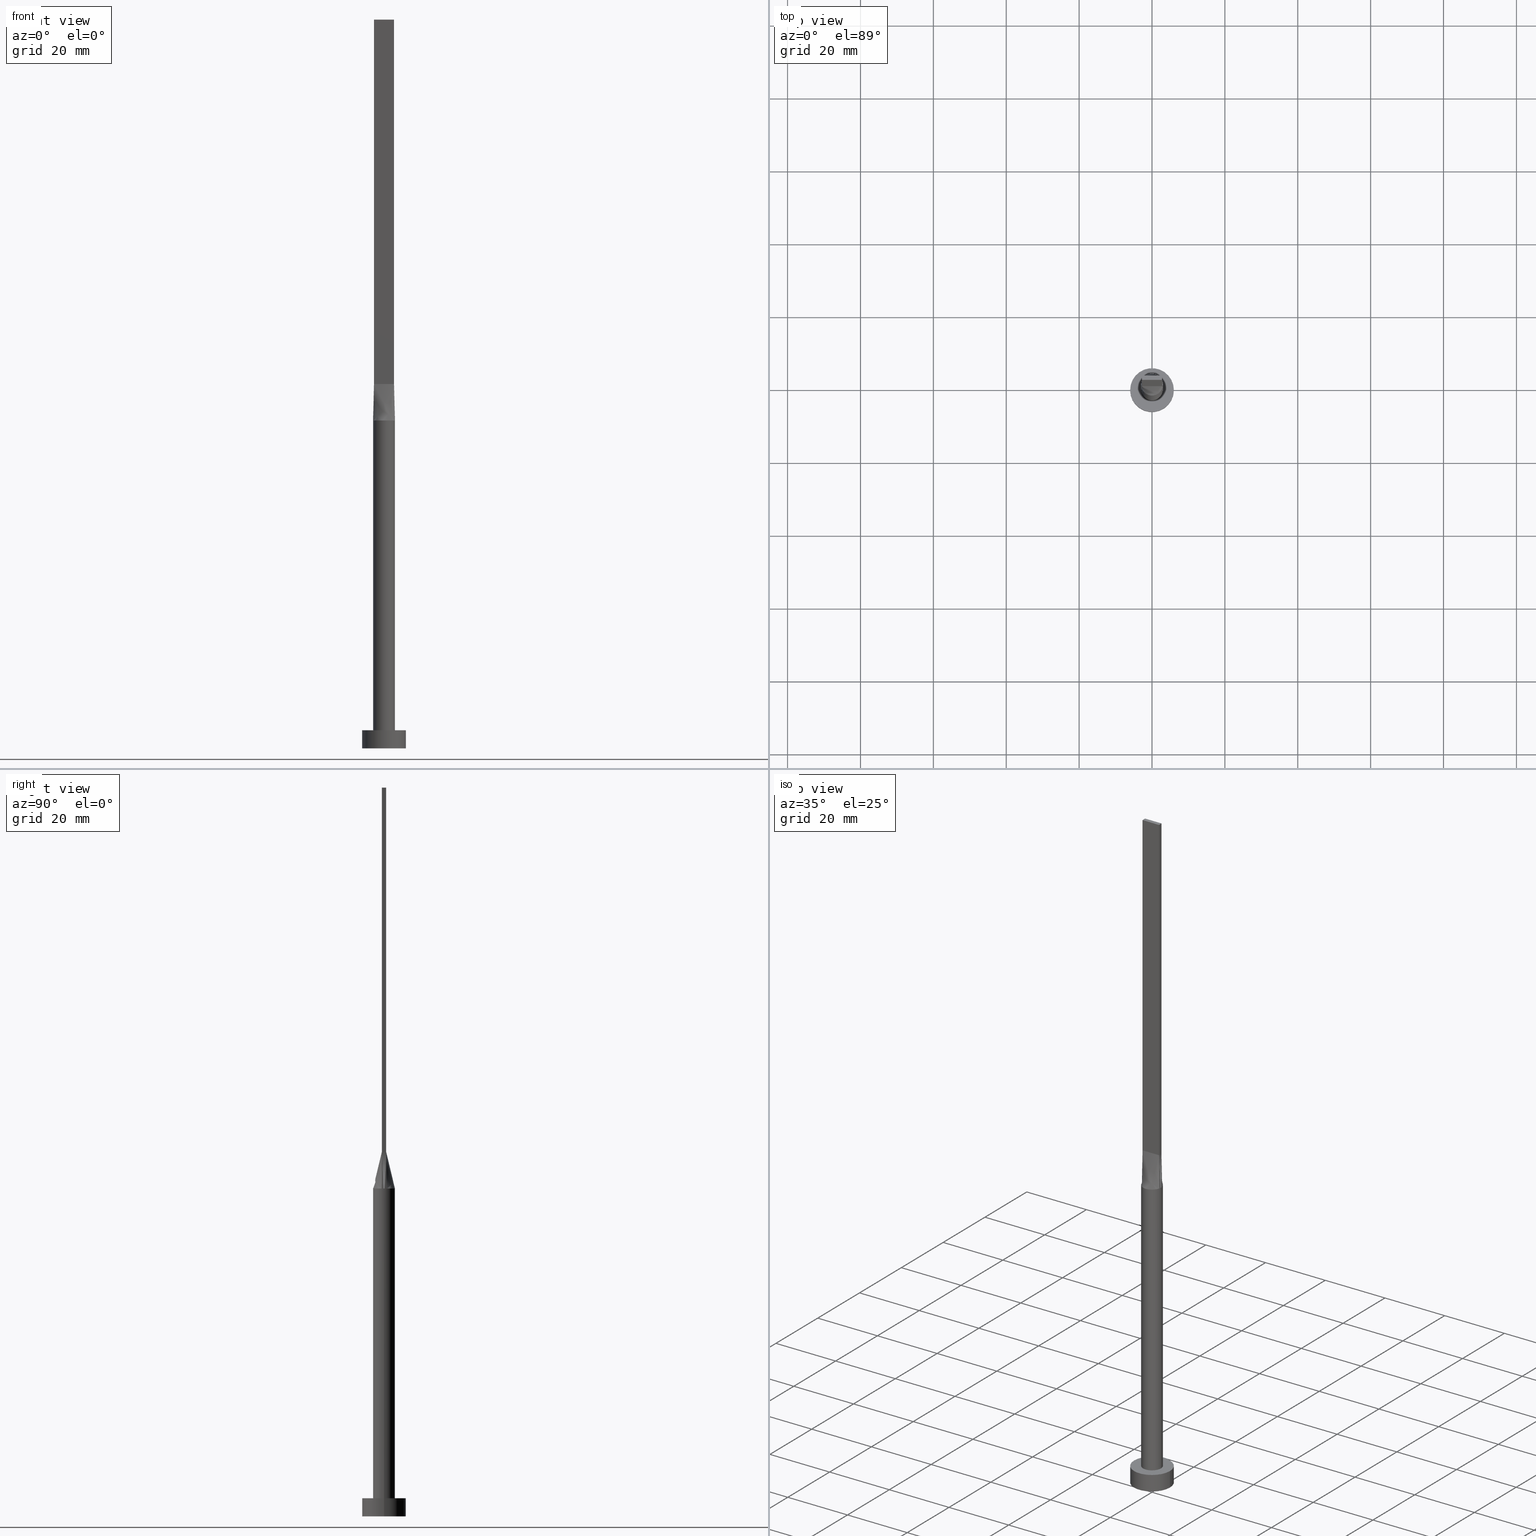
[diagram: canonical four-view strip — front | top / right | iso, engineering-drawing reading convention]
A machine part, canonical four-view strip (front | top / right | iso — engineering-drawing reading convention). The complete STEP part file that produces these views, byte-faithful:
ISO-10303-21;
HEADER;
FILE_DESCRIPTION (( 'STEP AP203' ),
    '1' );
FILE_NAME ('50dd.STEP',
    '2023-02-13T11:41:04',
    ( '' ),
    ( '' ),
    'SwSTEP 2.0',
    'SolidWorks 2019',
    '' );
FILE_SCHEMA (( 'CONFIG_CONTROL_DESIGN' ));
ENDSEC;

DATA;
#1 = CARTESIAN_POINT ( 'NONE',  ( 2.878980386154874616, 0.8781411751610636029, 90.00000000000002842 ) ) ;
#2 = CC_DESIGN_PERSON_AND_ORGANIZATION_ASSIGNMENT ( #142, #519, ( #194 ) ) ;
#3 = VERTEX_POINT ( 'NONE', #56 ) ;
#4 = CARTESIAN_POINT ( 'NONE',  ( 2.750000000000000000, 0.6000000000000001998, 100.0000000000000000 ) ) ;
#5 = ORIENTED_EDGE ( 'NONE', *, *, #288, .T. ) ;
#6 = CARTESIAN_POINT ( 'NONE',  ( 2.750000000000000000, -0.5999999999999997558, 200.0000000000000000 ) ) ;
#7 = ORIENTED_EDGE ( 'NONE', *, *, #487, .F. ) ;
#8 = LOCAL_TIME ( 12, 41, 4.000000000000000000, #94 ) ;
#9 = CARTESIAN_POINT ( 'NONE',  ( 1.604166666666666963, 0.6000000000000000888, 100.0000000000000000 ) ) ;
#10 = CARTESIAN_POINT ( 'NONE',  ( 1.829136458871247761, 2.402980488111650992, 89.99999999999997158 ) ) ;
#11 = VERTEX_POINT ( 'NONE', #250 ) ;
#12 = ORIENTED_EDGE ( 'NONE', *, *, #14, .T. ) ;
#13 = CARTESIAN_POINT ( 'NONE',  ( 2.750000000000000000, -0.1999999999999961253, 100.0000000000000000 ) ) ;
#14 = EDGE_CURVE ( 'NONE', #458, #248, #575, .T. ) ;
#15 = EDGE_LOOP ( 'NONE', ( #447, #158, #154, #321 ) ) ;
#16 = ORIENTED_EDGE ( 'NONE', *, *, #240, .F. ) ;
#17 = CARTESIAN_POINT ( 'NONE',  ( 0.2291666666666671015, 0.6000000000000001998, 100.0000000000000142 ) ) ;
#18 = PLANE ( 'NONE',  #87 ) ;
#19 = DIRECTION ( 'NONE',  ( -1.000000000000000000, 0.000000000000000000, 0.000000000000000000 ) ) ;
#20 = VECTOR ( 'NONE', #99, 1000.000000000000000 ) ;
#21 = CARTESIAN_POINT ( 'NONE',  ( 2.520833333333333037, 0.6000000000000000888, 100.0000000000000000 ) ) ;
#22 = CARTESIAN_POINT ( 'NONE',  ( 2.792624347712116872, -1.135030881087315757, 90.00000000000002842 ) ) ;
#23 = CARTESIAN_POINT ( 'NONE',  ( -0.4026715616377299356, 2.999999999999999556, 89.99999999999998579 ) ) ;
#24 = CC_DESIGN_DATE_AND_TIME_ASSIGNMENT ( #567, #143, ( #298 ) ) ;
#25 = CARTESIAN_POINT ( 'NONE',  ( 2.999207587164657074, -0.2156168166748835269, 90.00000000000001421 ) ) ;
#26 = CARTESIAN_POINT ( 'NONE',  ( 1.604166666666666741, -0.5999999999999996447, 100.0000000000000000 ) ) ;
#27 = ORIENTED_EDGE ( 'NONE', *, *, #333, .F. ) ;
#28 = CARTESIAN_POINT ( 'NONE',  ( -2.750000000000000000, -0.5999999999999995337, 100.0000000000000000 ) ) ;
#29 = FACE_OUTER_BOUND ( 'NONE', #100, .T. ) ;
#30 = CARTESIAN_POINT ( 'NONE',  ( -0.8041209001220698260, -2.916015559847872307, 90.00000000000002842 ) ) ;
#31 = CARTESIAN_POINT ( 'NONE',  ( 0.000000000000000000, 0.000000000000000000, 90.00000000000001421 ) ) ;
#32 = LOCAL_TIME ( 12, 41, 4.000000000000000000, #525 ) ;
#33 = CARTESIAN_POINT ( 'NONE',  ( -2.750000000000000000, -0.5999999999999994227, 100.0000000000000000 ) ) ;
#34 = ADVANCED_FACE ( 'NONE', ( #351 ), #563, .F. ) ;
#35 = DIRECTION ( 'NONE',  ( 0.01810162078030959007, -0.003949444533885576245, 0.9998283518749604415 ) ) ;
#36 = CARTESIAN_POINT ( 'NONE',  ( -2.750000000000000000, 0.6000000000000001998, 100.0000000000000000 ) ) ;
#37 = APPROVAL_DATE_TIME ( #355, #192 ) ;
#38 = PERSON ( 'NEUR�EN�', 'NEUR�EN�', 'NEUR�EN�', ('NEUR�EN�'), ('NEUR�EN�'), ('NEUR�EN�') ) ;
#39 = EDGE_CURVE ( 'NONE', #178, #111, #565, .T. ) ;
#40 = PERSON_AND_ORGANIZATION_ROLE ( 'design_supplier' ) ;
#41 = PLANE ( 'NONE',  #479 ) ;
#42 = PERSON_AND_ORGANIZATION_ROLE ( 'design_owner' ) ;
#43 = CARTESIAN_POINT ( 'NONE',  ( 2.750000000000000000, -0.5999999999999997558, 200.0000000000000000 ) ) ;
#44 = CARTESIAN_POINT ( 'NONE',  ( 2.792624347712116872, 1.135030881087315979, 90.00000000000001421 ) ) ;
#45 = CARTESIAN_POINT ( 'NONE',  ( 0.000000000000000000, 0.000000000000000000, 5.000000000000000000 ) ) ;
#46 = CARTESIAN_POINT ( 'NONE',  ( 0.000000000000000000, 0.000000000000000000, 5.000000000000000000 ) ) ;
#47 = APPROVAL ( #155, 'NEUR�EN�' ) ;
#48 = DIRECTION ( 'NONE',  ( 1.000000000000000000, 0.000000000000000000, 0.000000000000000000 ) ) ;
#49 = VERTEX_POINT ( 'NONE', #195 ) ;
#50 = ORIENTED_EDGE ( 'NONE', *, *, #98, .F. ) ;
#51 = VERTEX_POINT ( 'NONE', #200 ) ;
#52 = VERTEX_POINT ( 'NONE', #284 ) ;
#53 = CARTESIAN_POINT ( 'NONE',  ( -1.517787371616671654, 2.616501225271827380, 90.00000000000004263 ) ) ;
#54 = ORIENTED_EDGE ( 'NONE', *, *, #153, .F. ) ;
#55 = CARTESIAN_POINT ( 'NONE',  ( 1.829136458871247761, 2.402980488111650992, 89.99999999999997158 ) ) ;
#56 = CARTESIAN_POINT ( 'NONE',  ( 6.000000000000000888, 7.347880794884120722E-16, 0.000000000000000000 ) ) ;
#57 = VERTEX_POINT ( 'NONE', #497 ) ;
#58 = CARTESIAN_POINT ( 'NONE',  ( 2.750000000000000000, -0.3999999999999973022, 100.0000000000000000 ) ) ;
#59 = DIRECTION ( 'NONE',  ( -0.000000000000000000, -0.000000000000000000, -1.000000000000000000 ) ) ;
#60 = CARTESIAN_POINT ( 'NONE',  ( 2.931047284229977290, -0.6395012256501766412, 90.00000000000001421 ) ) ;
#61 = CARTESIAN_POINT ( 'NONE',  ( 1.829136458871248205, -2.402980488111650992, 90.00000000000002842 ) ) ;
#62 = DIRECTION ( 'NONE',  ( -1.000000000000000000, 0.000000000000000000, 0.000000000000000000 ) ) ;
#63 = CC_DESIGN_PERSON_AND_ORGANIZATION_ASSIGNMENT ( #138, #577, ( #298 ) ) ;
#64 = ORIENTED_EDGE ( 'NONE', *, *, #349, .T. ) ;
#65 = CARTESIAN_POINT ( 'NONE',  ( 0.000000000000000000, 0.000000000000000000, 5.000000000000000000 ) ) ;
#66 = EDGE_LOOP ( 'NONE', ( #290, #12 ) ) ;
#67 = CARTESIAN_POINT ( 'NONE',  ( 2.792624347712116872, 1.135030881087315979, 90.00000000000001421 ) ) ;
#68 = PRODUCT_DEFINITION_FORMATION_WITH_SPECIFIED_SOURCE ( 'LIBOVOLN�', '', #124, .NOT_KNOWN. ) ;
#69 = CARTESIAN_POINT ( 'NONE',  ( 0.8041209001220684938, -2.916015559847872751, 90.00000000000002842 ) ) ;
#70 = EDGE_LOOP ( 'NONE', ( #50, #168, #534, #308, #510, #303 ) ) ;
#71 = DIRECTION ( 'NONE',  ( 0.000000000000000000, 0.000000000000000000, 1.000000000000000000 ) ) ;
#72 = CARTESIAN_POINT ( 'NONE',  ( 0.000000000000000000, 0.000000000000000000, 5.000000000000000000 ) ) ;
#73 = ORIENTED_EDGE ( 'NONE', *, *, #503, .F. ) ;
#74 = DIRECTION ( 'NONE',  ( -0.01810162078030963170, 0.003949444533885597929, 0.9998283518749604415 ) ) ;
#75 = ORIENTED_EDGE ( 'NONE', *, *, #39, .T. ) ;
#76 = EDGE_CURVE ( 'NONE', #339, #11, #406, .T. ) ;
#77 = PLANE ( 'NONE',  #329 ) ;
#78 = CARTESIAN_POINT ( 'NONE',  ( 2.750000000000000000, -0.5999999999999997558, 100.0000000000000000 ) ) ;
#79 = DIRECTION ( 'NONE',  ( 1.000000000000000000, 0.000000000000000000, 0.000000000000000000 ) ) ;
#80 = LINE ( 'NONE', #33, #411 ) ;
#81 = CIRCLE ( 'NONE', #160, 3.000000000000000444 ) ;
#82 = DATE_AND_TIME ( #279, #401 ) ;
#83 = CARTESIAN_POINT ( 'NONE',  ( -2.878980386154874616, 0.8781411751610629368, 90.00000000000005684 ) ) ;
#84 = B_SPLINE_CURVE_WITH_KNOTS ( 'NONE', 3,
 ( #293, #1, #44, #415, #486, #10, #318, #235, #408, #23, #423, #204, #421, #259, #170, #331, #376, #543 ),
 .UNSPECIFIED., .F., .F.,
 ( 4, 2, 2, 2, 2, 2, 2, 2, 4 ),
 ( 0.000000000000000000, 0.1250000000000000000, 0.2500000000000000000, 0.3750000000000000000, 0.5000000000000000000, 0.6250000000000000000, 0.7500000000000000000, 0.8750000000000000000, 1.000000000000000000 ),
 .UNSPECIFIED. ) ;
#85 = PLANE ( 'NONE',  #476 ) ;
#86 = CARTESIAN_POINT ( 'NONE',  ( -2.291666666666665630, -0.5999999999999994227, 100.0000000000000000 ) ) ;
#87 = AXIS2_PLACEMENT_3D ( 'NONE', #206, #62, #428 ) ;
#88 = APPROVAL_DATE_TIME ( #483, #538 ) ;
#89 = CARTESIAN_POINT ( 'NONE',  ( -2.931047284229977734, -0.6395012256501755310, 90.00000000000001421 ) ) ;
#90 = CIRCLE ( 'NONE', #365, 3.000000000000000444 ) ;
#91 = DIRECTION ( 'NONE',  ( 1.000000000000000000, 0.000000000000000000, 0.000000000000000000 ) ) ;
#92 = CARTESIAN_POINT ( 'NONE',  ( 0.000000000000000000, 0.000000000000000000, 0.000000000000000000 ) ) ;
#93 = LINE ( 'NONE', #491, #156 ) ;
#94 = COORDINATED_UNIVERSAL_TIME_OFFSET ( 1, 0, .AHEAD. ) ;
#95 = B_SPLINE_SURFACE_WITH_KNOTS ( 'NONE', 3, 1, ( 
 ( #60, #113 ),
 ( #338, #58 ),
 ( #25, #13 ),
 ( #422, #504 ),
 ( #212, #431 ),
 ( #512, #169 ) ),
 .UNSPECIFIED., .F., .F., .F.,
 ( 4, 2, 4 ),
 ( 2, 2 ),
 ( 0.000000000000000000, 0.5000000000000000000, 1.000000000000000000 ),
 ( 0.000000000000000000, 1.000000000000000000 ),
 .UNSPECIFIED. ) ;
#96 = DIRECTION ( 'NONE',  ( -0.000000000000000000, -0.000000000000000000, -1.000000000000000000 ) ) ;
#97 = ORIENTED_EDGE ( 'NONE', *, *, #177, .T. ) ;
#98 = EDGE_CURVE ( 'NONE', #178, #49, #93, .T. ) ;
#99 = DIRECTION ( 'NONE',  ( -0.000000000000000000, -0.000000000000000000, -1.000000000000000000 ) ) ;
#100 = EDGE_LOOP ( 'NONE', ( #385, #327, #164, #496 ) ) ;
#101 = LOCAL_TIME ( 12, 41, 4.000000000000000000, #362 ) ;
#102 = EDGE_LOOP ( 'NONE', ( #471, #368, #16, #493 ) ) ;
#103 = EDGE_CURVE ( 'NONE', #111, #449, #84, .T. ) ;
#104 = COORDINATED_UNIVERSAL_TIME_OFFSET ( 1, 0, .AHEAD. ) ;
#105 = CARTESIAN_POINT ( 'NONE',  ( 2.931047284229977290, 0.6395012256501767522, 90.00000000000001421 ) ) ;
#106 = APPROVAL_ROLE ( '' ) ;
#107 = CARTESIAN_POINT ( 'NONE',  ( 2.750000000000000000, 0.6000000000000001998, 100.0000000000000000 ) ) ;
#108 = ADVANCED_FACE ( 'NONE', ( #501 ), #18, .F. ) ;
#109 = CARTESIAN_POINT ( 'NONE',  ( -1.829136458871247761, 2.402980488111649660, 89.99999999999998579 ) ) ;
#110 = CYLINDRICAL_SURFACE ( 'NONE', #371, 6.000000000000000888 ) ;
#111 = VERTEX_POINT ( 'NONE', #311 ) ;
#112 = LINE ( 'NONE', #302, #514 ) ;
#113 = CARTESIAN_POINT ( 'NONE',  ( 2.750000000000000000, -0.5999999999999997558, 100.0000000000000000 ) ) ;
#114 =( NAMED_UNIT ( * ) PLANE_ANGLE_UNIT ( ) SI_UNIT ( $, .RADIAN. ) );
#115 = CARTESIAN_POINT ( 'NONE',  ( -2.999207587164656630, -0.2156168166748826387, 90.00000000000001421 ) ) ;
#116 = VECTOR ( 'NONE', #147, 1000.000000000000000 ) ;
#117 = CARTESIAN_POINT ( 'NONE',  ( 2.291666666666666519, 0.6000000000000000888, 100.0000000000000000 ) ) ;
#118 = VECTOR ( 'NONE', #35, 1000.000000000000000 ) ;
#119 = ORIENTED_EDGE ( 'NONE', *, *, #571, .F. ) ;
#120 = DIRECTION ( 'NONE',  ( -0.000000000000000000, -0.000000000000000000, -1.000000000000000000 ) ) ;
#121 = ORIENTED_EDGE ( 'NONE', *, *, #150, .T. ) ;
#122 =( LENGTH_UNIT ( ) NAMED_UNIT ( * ) SI_UNIT ( .MILLI., .METRE. ) );
#123 = CARTESIAN_POINT ( 'NONE',  ( 0.000000000000000000, 0.000000000000000000, 5.000000000000000000 ) ) ;
#124 = PRODUCT ( '50dd', '50dd', '', ( #134 ) ) ;
#125 = CARTESIAN_POINT ( 'NONE',  ( -2.750000000000000000, 0.6000000000000001998, 100.0000000000000000 ) ) ;
#126 = EDGE_CURVE ( 'NONE', #51, #339, #148, .T. ) ;
#127 = CARTESIAN_POINT ( 'NONE',  ( 2.520833333333333037, -0.5999999999999996447, 100.0000000000000000 ) ) ;
#128 = AXIS2_PLACEMENT_3D ( 'NONE', #123, #473, #79 ) ;
#129 = DIRECTION ( 'NONE',  ( 1.000000000000000000, 0.000000000000000000, 0.000000000000000000 ) ) ;
#130 = CARTESIAN_POINT ( 'NONE',  ( -2.520833333333333037, -0.5999999999999994227, 100.0000000000000000 ) ) ;
#131 = DATE_AND_TIME ( #222, #32 ) ;
#132 = CARTESIAN_POINT ( 'NONE',  ( 0.000000000000000000, 0.000000000000000000, 5.000000000000000000 ) ) ;
#133 = DIRECTION ( 'NONE',  ( 0.000000000000000000, 0.000000000000000000, 1.000000000000000000 ) ) ;
#134 = MECHANICAL_CONTEXT ( 'NONE', #332, 'mechanical' ) ;
#135 = ADVANCED_FACE ( 'NONE', ( #398 ), #176, .F. ) ;
#136 = CARTESIAN_POINT ( 'NONE',  ( -2.878980386154874616, -0.8781411751610622707, 89.99999999999998579 ) ) ;
#137 = PERSON_AND_ORGANIZATION ( #38, #530 ) ;
#138 = PERSON_AND_ORGANIZATION ( #38, #530 ) ;
#139 = AXIS2_PLACEMENT_3D ( 'NONE', #413, #239, #48 ) ;
#140 = DIRECTION ( 'NONE',  ( -0.000000000000000000, 1.000000000000000000, -0.000000000000000000 ) ) ;
#141 = DIRECTION ( 'NONE',  ( -0.000000000000000000, -0.000000000000000000, -1.000000000000000000 ) ) ;
#142 = PERSON_AND_ORGANIZATION ( #38, #530 ) ;
#143 = DATE_TIME_ROLE ( 'creation_date' ) ;
#144 = ADVANCED_FACE ( 'NONE', ( #388 ), #85, .T. ) ;
#145 = EDGE_LOOP ( 'NONE', ( #323, #372 ) ) ;
#146 = DIRECTION ( 'NONE',  ( 0.000000000000000000, 0.000000000000000000, 1.000000000000000000 ) ) ;
#147 = DIRECTION ( 'NONE',  ( 0.000000000000000000, 1.000000000000000000, 0.000000000000000000 ) ) ;
#148 = CIRCLE ( 'NONE', #189, 3.000000000000000444 ) ;
#149 = EDGE_LOOP ( 'NONE', ( #215, #285, #241, #5 ) ) ;
#150 = EDGE_CURVE ( 'NONE', #248, #366, #315, .T. ) ;
#151 = CC_DESIGN_APPROVAL ( #538, ( #194 ) ) ;
#152 = CYLINDRICAL_SURFACE ( 'NONE', #465, 3.000000000000000444 ) ;
#153 = EDGE_CURVE ( 'NONE', #248, #458, #312, .T. ) ;
#154 = ORIENTED_EDGE ( 'NONE', *, *, #232, .T. ) ;
#155 = APPROVAL_STATUS ( 'not_yet_approved' ) ;
#156 = VECTOR ( 'NONE', #141, 1000.000000000000000 ) ;
#157 = CARTESIAN_POINT ( 'NONE',  ( 0.4583333333333337589, 0.6000000000000000888, 100.0000000000000142 ) ) ;
#158 = ORIENTED_EDGE ( 'NONE', *, *, #571, .T. ) ;
#159 = CARTESIAN_POINT ( 'NONE',  ( 0.000000000000000000, 0.000000000000000000, 90.00000000000001421 ) ) ;
#160 = AXIS2_PLACEMENT_3D ( 'NONE', #45, #274, #91 ) ;
#161 = EDGE_LOOP ( 'NONE', ( #256, #542, #73, #262 ) ) ;
#162 = VECTOR ( 'NONE', #485, 1000.000000000000000 ) ;
#163 = CARTESIAN_POINT ( 'NONE',  ( -2.328745122427008152, 1.922758842442225280, 89.99999999999997158 ) ) ;
#164 = ORIENTED_EDGE ( 'NONE', *, *, #207, .F. ) ;
#165 = CARTESIAN_POINT ( 'NONE',  ( -2.840523642114988867, -0.6197506128250873658, 95.00000000000000000 ) ) ;
#166 = DIRECTION ( 'NONE',  ( -0.000000000000000000, -0.000000000000000000, -1.000000000000000000 ) ) ;
#167 = ORIENTED_EDGE ( 'NONE', *, *, #503, .T. ) ;
#168 = ORIENTED_EDGE ( 'NONE', *, *, #261, .F. ) ;
#169 = CARTESIAN_POINT ( 'NONE',  ( 2.750000000000000000, 0.6000000000000001998, 100.0000000000000000 ) ) ;
#170 = CARTESIAN_POINT ( 'NONE',  ( -2.518011668798964653, 1.657305971825549840, 90.00000000000002842 ) ) ;
#171 = ORIENTED_EDGE ( 'NONE', *, *, #393, .F. ) ;
#172 = CARTESIAN_POINT ( 'NONE',  ( -2.931320679040856803, 0.6395611071856786012, 90.00000000000001421 ) ) ;
#173 = CARTESIAN_POINT ( 'NONE',  ( -2.750000000000000000, 0.6000000000000001998, 200.0000000000000000 ) ) ;
#174 = AXIS2_PLACEMENT_3D ( 'NONE', #403, #281, #224 ) ;
#175 = CARTESIAN_POINT ( 'NONE',  ( 1.517787371616671876, -2.616501225271829156, 90.00000000000002842 ) ) ;
#176 = PLANE ( 'NONE',  #243 ) ;
#177 = EDGE_CURVE ( 'NONE', #111, #245, #412, .T. ) ;
#178 = VERTEX_POINT ( 'NONE', #528 ) ;
#179 = PLANE ( 'NONE',  #305 ) ;
#180 = CARTESIAN_POINT ( 'NONE',  ( 0.2291666666666668517, -0.5999999999999995337, 100.0000000000000000 ) ) ;
#181 = CARTESIAN_POINT ( 'NONE',  ( 2.931047284229977734, -0.6395012256501753090, 90.00000000000001421 ) ) ;
#182 = EDGE_CURVE ( 'NONE', #251, #245, #238, .T. ) ;
#183 = CARTESIAN_POINT ( 'NONE',  ( -2.931047284229977290, 0.6395012256501755310, 90.00000000000001421 ) ) ;
#184 = APPLICATION_PROTOCOL_DEFINITION ( 'international standard', 'config_control_design', 1994, #242 ) ;
#185 = CIRCLE ( 'NONE', #370, 6.000000000000000888 ) ;
#186 = DIRECTION ( 'NONE',  ( 0.000000000000000000, -0.000000000000000000, -1.000000000000000000 ) ) ;
#187 = CC_DESIGN_APPROVAL ( #47, ( #68 ) ) ;
#188 = LINE ( 'NONE', #356, #579 ) ;
#189 = AXIS2_PLACEMENT_3D ( 'NONE', #31, #219, #129 ) ;
#190 = COORDINATED_UNIVERSAL_TIME_OFFSET ( 1, 0, .AHEAD. ) ;
#191 = CARTESIAN_POINT ( 'NONE',  ( -2.750000000000000000, -0.5999999999999994227, 200.0000000000000000 ) ) ;
#192 = APPROVAL ( #570, 'NEUR�EN�' ) ;
#193 = VECTOR ( 'NONE', #508, 1000.000000000000000 ) ;
#194 = SECURITY_CLASSIFICATION ( '', '', #230 ) ;
#195 = CARTESIAN_POINT ( 'NONE',  ( 3.000000000000000444, 3.673940397442060361E-16, 5.000000000000000000 ) ) ;
#196 = CYLINDRICAL_SURFACE ( 'NONE', #521, 3.000000000000000444 ) ;
#197 = LINE ( 'NONE', #578, #283 ) ;
#198 = VERTEX_POINT ( 'NONE', #191 ) ;
#199 = FACE_OUTER_BOUND ( 'NONE', #344, .T. ) ;
#200 = CARTESIAN_POINT ( 'NONE',  ( -2.999603793582328315, -7.025298958605770567E-16, 90.00000000000001421 ) ) ;
#201 = VECTOR ( 'NONE', #271, 1000.000000000000000 ) ;
#202 = CARTESIAN_POINT ( 'NONE',  ( 2.878980386154874616, 0.8781411751610636029, 90.00000000000002842 ) ) ;
#203 = VERTEX_POINT ( 'NONE', #43 ) ;
#204 = CARTESIAN_POINT ( 'NONE',  ( -1.517787371616671654, 2.616501225271827380, 90.00000000000004263 ) ) ;
#205 = ORIENTED_EDGE ( 'NONE', *, *, #177, .F. ) ;
#206 = CARTESIAN_POINT ( 'NONE',  ( 2.750000000000000000, -0.5999999999999997558, 200.0000000000000000 ) ) ;
#207 = EDGE_CURVE ( 'NONE', #198, #203, #197, .T. ) ;
#208 = EDGE_LOOP ( 'NONE', ( #451, #167, #477, #340 ) ) ;
#209 = CARTESIAN_POINT ( 'NONE',  ( 0.8041209001220689379, 2.916015559847871863, 90.00000000000004263 ) ) ;
#210 = CARTESIAN_POINT ( 'NONE',  ( 2.878980386154875060, -0.8781411751610634919, 90.00000000000001421 ) ) ;
#211 = CARTESIAN_POINT ( 'NONE',  ( -2.931047284229977290, 0.6395012256501761971, 90.00000000000001421 ) ) ;
#212 = CARTESIAN_POINT ( 'NONE',  ( 2.976487486186430331, 0.4312336333497658880, 90.00000000000001421 ) ) ;
#213 = CARTESIAN_POINT ( 'NONE',  ( -1.829136458871248427, -2.402980488111649660, 90.00000000000000000 ) ) ;
#214 = EDGE_CURVE ( 'NONE', #198, #433, #291, .T. ) ;
#215 = ORIENTED_EDGE ( 'NONE', *, *, #487, .T. ) ;
#216 = EDGE_CURVE ( 'NONE', #52, #433, #452, .T. ) ;
#217 = CARTESIAN_POINT ( 'NONE',  ( -2.976487486186430331, -0.4312336333497656105, 90.00000000000001421 ) ) ;
#218 = CARTESIAN_POINT ( 'NONE',  ( -0.2291666666666664076, -0.5999999999999995337, 100.0000000000000000 ) ) ;
#219 = DIRECTION ( 'NONE',  ( 0.000000000000000000, 0.000000000000000000, 1.000000000000000000 ) ) ;
#220 = ADVANCED_FACE ( 'NONE', ( #199 ), #152, .T. ) ;
#221 = CARTESIAN_POINT ( 'NONE',  ( -2.750000000000000000, 0.6000000000000001998, 100.0000000000000000 ) ) ;
#222 = CALENDAR_DATE ( 2023, 13, 2 ) ;
#223 = FACE_OUTER_BOUND ( 'NONE', #425, .T. ) ;
#224 = DIRECTION ( 'NONE',  ( 1.000000000000000000, 0.000000000000000000, 0.000000000000000000 ) ) ;
#225 = AXIS2_PLACEMENT_3D ( 'NONE', #337, #266, #469 ) ;
#226 = CARTESIAN_POINT ( 'NONE',  ( -2.518011668798964653, -1.657305971825550062, 90.00000000000000000 ) ) ;
#227 = DIRECTION ( 'NONE',  ( 1.000000000000000000, 0.000000000000000000, 0.000000000000000000 ) ) ;
#228 = DIRECTION ( 'NONE',  ( 0.000000000000000000, 0.000000000000000000, 1.000000000000000000 ) ) ;
#229 = B_SPLINE_SURFACE_WITH_KNOTS ( 'NONE', 3, 1, ( 
 ( #89, #574 ),
 ( #136, #130 ),
 ( #482, #86 ),
 ( #226, #359 ),
 ( #568, #527 ),
 ( #213, #557 ),
 ( #550, #382 ),
 ( #30, #307 ),
 ( #462, #218 ),
 ( #392, #180 ),
 ( #69, #387 ),
 ( #175, #310 ),
 ( #61, #509 ),
 ( #397, #26 ),
 ( #347, #516 ),
 ( #22, #562 ),
 ( #210, #127 ),
 ( #181, #78 ) ),
 .UNSPECIFIED., .F., .F., .F.,
 ( 4, 2, 2, 2, 2, 2, 2, 2, 4 ),
 ( 2, 2 ),
 ( 0.000000000000000000, 0.1250000000000000833, 0.2500000000000001665, 0.3750000000000001110, 0.5000000000000001110, 0.6250000000000001110, 0.7500000000000000000, 0.8750000000000000000, 1.000000000000000000 ),
 ( 0.000000000000000000, 1.000000000000000000 ),
 .UNSPECIFIED. ) ;
#230 = SECURITY_CLASSIFICATION_LEVEL ( 'unclassified' ) ;
#231 = PERSON_AND_ORGANIZATION ( #38, #530 ) ;
#232 = EDGE_CURVE ( 'NONE', #3, #366, #185, .T. ) ;
#233 = DIRECTION ( 'NONE',  ( 1.000000000000000000, 0.000000000000000000, 0.000000000000000000 ) ) ;
#234 = AXIS2_PLACEMENT_3D ( 'NONE', #520, #133, #524 ) ;
#235 = CARTESIAN_POINT ( 'NONE',  ( 0.8041209001220689379, 2.916015559847871863, 90.00000000000004263 ) ) ;
#236 = DIRECTION ( 'NONE',  ( 0.000000000000000000, 0.000000000000000000, 1.000000000000000000 ) ) ;
#237 = ORIENTED_EDGE ( 'NONE', *, *, #216, .F. ) ;
#238 = LINE ( 'NONE', #4, #517 ) ;
#239 = DIRECTION ( 'NONE',  ( 0.000000000000000000, 0.000000000000000000, 1.000000000000000000 ) ) ;
#240 = EDGE_CURVE ( 'NONE', #203, #545, #533, .T. ) ;
#241 = ORIENTED_EDGE ( 'NONE', *, *, #480, .F. ) ;
#242 = APPLICATION_CONTEXT ( 'configuration controlled 3d designs of mechanical parts and assemblies' ) ;
#243 = AXIS2_PLACEMENT_3D ( 'NONE', #484, #270, #186 ) ;
#244 = ORIENTED_EDGE ( 'NONE', *, *, #261, .T. ) ;
#245 = VERTEX_POINT ( 'NONE', #407 ) ;
#246 = CARTESIAN_POINT ( 'NONE',  ( -1.833333333333333037, 0.6000000000000000888, 100.0000000000000000 ) ) ;
#247 = LOCAL_TIME ( 12, 41, 4.000000000000000000, #190 ) ;
#248 = VERTEX_POINT ( 'NONE', #369 ) ;
#249 = CARTESIAN_POINT ( 'NONE',  ( -0.8041209001220690489, 2.916015559847871419, 90.00000000000002842 ) ) ;
#250 = CARTESIAN_POINT ( 'NONE',  ( 2.931332910560268790, -0.6395638358681950963, 90.00000000000001421 ) ) ;
#251 = VERTEX_POINT ( 'NONE', #287 ) ;
#252 = EDGE_CURVE ( 'NONE', #57, #49, #529, .T. ) ;
#253 = CARTESIAN_POINT ( 'NONE',  ( -2.999207587164656630, 0.2156168166748832771, 90.00000000000001421 ) ) ;
#254 = UNCERTAINTY_MEASURE_WITH_UNIT (LENGTH_MEASURE( 1.000000000000000082E-05 ), #122, 'distance_accuracy_value', 'NONE');
#255 = FACE_OUTER_BOUND ( 'NONE', #558, .T. ) ;
#256 = ORIENTED_EDGE ( 'NONE', *, *, #216, .T. ) ;
#257 = DIRECTION ( 'NONE',  ( -1.000000000000000000, 0.000000000000000000, 0.000000000000000000 ) ) ;
#258 = LINE ( 'NONE', #342, #289 ) ;
#259 = CARTESIAN_POINT ( 'NONE',  ( -2.328745122427008152, 1.922758842442225280, 89.99999999999997158 ) ) ;
#260 = CARTESIAN_POINT ( 'NONE',  ( -2.750000000000000000, 0.3999999999999976352, 100.0000000000000000 ) ) ;
#261 = EDGE_CURVE ( 'NONE', #11, #178, #363, .T. ) ;
#262 = ORIENTED_EDGE ( 'NONE', *, *, #320, .T. ) ;
#263 = PRODUCT_DEFINITION_SHAPE ( 'NONE', 'NONE',  #298 ) ;
#264 = FACE_OUTER_BOUND ( 'NONE', #15, .T. ) ;
#265 = DIRECTION ( 'NONE',  ( -0.000000000000000000, 0.000000000000000000, -1.000000000000000000 ) ) ;
#266 = DIRECTION ( 'NONE',  ( 0.000000000000000000, 0.000000000000000000, 1.000000000000000000 ) ) ;
#267 = VECTOR ( 'NONE', #301, 1000.000000000000000 ) ;
#268 = LINE ( 'NONE', #173, #409 ) ;
#269 = APPROVAL_ROLE ( '' ) ;
#270 = DIRECTION ( 'NONE',  ( 0.000000000000000000, -1.000000000000000000, 0.000000000000000000 ) ) ;
#271 = DIRECTION ( 'NONE',  ( -1.000000000000000000, -0.000000000000000000, -0.000000000000000000 ) ) ;
#272 = APPROVAL_ROLE ( '' ) ;
#273 = DIRECTION ( 'NONE',  ( 0.000000000000000000, -1.000000000000000000, 0.000000000000000000 ) ) ;
#274 = DIRECTION ( 'NONE',  ( 0.000000000000000000, 0.000000000000000000, 1.000000000000000000 ) ) ;
#275 = CALENDAR_DATE ( 2023, 13, 2 ) ;
#276 = VECTOR ( 'NONE', #19, 1000.000000000000000 ) ;
#277 = CARTESIAN_POINT ( 'NONE',  ( -2.840523642114988423, 0.6197506128250878099, 95.00000000000000000 ) ) ;
#278 = EDGE_CURVE ( 'NONE', #203, #251, #384, .T. ) ;
#279 = CALENDAR_DATE ( 2023, 13, 2 ) ;
#280 = DIRECTION ( 'NONE',  ( 1.000000000000000000, 0.000000000000000000, -0.000000000000000000 ) ) ;
#281 = DIRECTION ( 'NONE',  ( 0.000000000000000000, 0.000000000000000000, 1.000000000000000000 ) ) ;
#282 = DIRECTION ( 'NONE',  ( -1.000000000000000000, 0.000000000000000000, 0.000000000000000000 ) ) ;
#283 = VECTOR ( 'NONE', #367, 1000.000000000000000 ) ;
#284 = CARTESIAN_POINT ( 'NONE',  ( -2.750000000000000000, 0.6000000000000001998, 100.0000000000000000 ) ) ;
#285 = ORIENTED_EDGE ( 'NONE', *, *, #320, .F. ) ;
#286 = FACE_OUTER_BOUND ( 'NONE', #70, .T. ) ;
#287 = CARTESIAN_POINT ( 'NONE',  ( 2.750000000000000000, -0.5999999999999997558, 100.0000000000000000 ) ) ;
#288 = EDGE_CURVE ( 'NONE', #545, #245, #420, .T. ) ;
#289 = VECTOR ( 'NONE', #515, 1000.000000000000000 ) ;
#290 = ORIENTED_EDGE ( 'NONE', *, *, #153, .T. ) ;
#291 = LINE ( 'NONE', #489, #20 ) ;
#292 = ORIENTED_EDGE ( 'NONE', *, *, #445, .T. ) ;
#293 = CARTESIAN_POINT ( 'NONE',  ( 2.931303352270923757, 0.6395574164693091923, 90.00000000000001421 ) ) ;
#294 = ORIENTED_EDGE ( 'NONE', *, *, #513, .T. ) ;
#295 = CARTESIAN_POINT ( 'NONE',  ( -2.518011668798964653, 1.657305971825549840, 90.00000000000002842 ) ) ;
#296 = AXIS2_PLACEMENT_3D ( 'NONE', #46, #236, #227 ) ;
#297 = CC_DESIGN_SECURITY_CLASSIFICATION ( #194, ( #68 ) ) ;
#298 = PRODUCT_DEFINITION ( 'NEZN�M�', '', #68, #507 ) ;
#299 = DIRECTION ( 'NONE',  ( 5.913830031739115543E-17, 1.000000000000000000, -0.000000000000000000 ) ) ;
#300 = ORIENTED_EDGE ( 'NONE', *, *, #98, .T. ) ;
#301 = DIRECTION ( 'NONE',  ( -0.000000000000000000, -0.000000000000000000, -1.000000000000000000 ) ) ;
#302 = CARTESIAN_POINT ( 'NONE',  ( 2.840523642114988867, -0.6197506128250874768, 95.00000000000000000 ) ) ;
#303 = ORIENTED_EDGE ( 'NONE', *, *, #252, .T. ) ;
#304 = CARTESIAN_POINT ( 'NONE',  ( -0.2291666666666662688, 0.6000000000000000888, 100.0000000000000142 ) ) ;
#305 = AXIS2_PLACEMENT_3D ( 'NONE', #432, #299, #436 ) ;
#306 = CARTESIAN_POINT ( 'NONE',  ( 1.517787371616672099, 2.616501225271827824, 90.00000000000004263 ) ) ;
#307 = CARTESIAN_POINT ( 'NONE',  ( -0.4583333333333328152, -0.5999999999999994227, 100.0000000000000000 ) ) ;
#308 = ORIENTED_EDGE ( 'NONE', *, *, #126, .F. ) ;
#309 = FACE_BOUND ( 'NONE', #145, .T. ) ;
#310 = CARTESIAN_POINT ( 'NONE',  ( 0.9166666666666669627, -0.5999999999999996447, 100.0000000000000000 ) ) ;
#311 = CARTESIAN_POINT ( 'NONE',  ( 2.931303352270923757, 0.6395574164693091923, 90.00000000000001421 ) ) ;
#312 = CIRCLE ( 'NONE', #128, 6.000000000000000888 ) ;
#313 = ADVANCED_FACE ( 'NONE', ( #381 ), #95, .T. ) ;
#314 = APPROVAL_PERSON_ORGANIZATION ( #231, #192, #272 ) ;
#315 = LINE ( 'NONE', #481, #554 ) ;
#316 = ADVANCED_FACE ( 'NONE', ( #255 ), #490, .T. ) ;
#317 = CALENDAR_DATE ( 2023, 13, 2 ) ;
#318 = CARTESIAN_POINT ( 'NONE',  ( 1.517787371616672099, 2.616501225271827824, 90.00000000000004263 ) ) ;
#319 = ADVANCED_BREP_SHAPE_REPRESENTATION ( '50dd', ( #438, #174 ), #440 ) ;
#320 = EDGE_CURVE ( 'NONE', #419, #52, #268, .T. ) ;
#321 = ORIENTED_EDGE ( 'NONE', *, *, #150, .F. ) ;
#322 = CIRCLE ( 'NONE', #225, 6.000000000000000888 ) ;
#323 = ORIENTED_EDGE ( 'NONE', *, *, #252, .F. ) ;
#324 = CARTESIAN_POINT ( 'NONE',  ( 0.000000000000000000, 0.000000000000000000, 90.00000000000001421 ) ) ;
#325 = CARTESIAN_POINT ( 'NONE',  ( 2.750000000000000000, 0.6000000000000001998, 200.0000000000000000 ) ) ;
#326 = ADVANCED_FACE ( 'NONE', ( #309, #396 ), #77, .T. ) ;
#327 = ORIENTED_EDGE ( 'NONE', *, *, #278, .F. ) ;
#328 = CARTESIAN_POINT ( 'NONE',  ( -0.9166666666666661856, 0.6000000000000000888, 100.0000000000000000 ) ) ;
#329 = AXIS2_PLACEMENT_3D ( 'NONE', #132, #346, #478 ) ;
#330 = CARTESIAN_POINT ( 'NONE',  ( -1.604166666666666297, 0.6000000000000000888, 100.0000000000000000 ) ) ;
#331 = CARTESIAN_POINT ( 'NONE',  ( -2.792624347712117761, 1.135030881087315313, 90.00000000000001421 ) ) ;
#332 = APPLICATION_CONTEXT ( 'configuration controlled 3d designs of mechanical parts and assemblies' ) ;
#333 = EDGE_CURVE ( 'NONE', #433, #251, #80, .T. ) ;
#334 = CARTESIAN_POINT ( 'NONE',  ( 2.518011668798964209, 1.657305971825549840, 90.00000000000001421 ) ) ;
#335 = DIRECTION ( 'NONE',  ( -1.000000000000000000, 0.000000000000000000, 0.000000000000000000 ) ) ;
#336 = ORIENTED_EDGE ( 'NONE', *, *, #393, .T. ) ;
#337 = CARTESIAN_POINT ( 'NONE',  ( 0.000000000000000000, 0.000000000000000000, 0.000000000000000000 ) ) ;
#338 = CARTESIAN_POINT ( 'NONE',  ( 2.976487486186430331, -0.4312336333497666652, 90.00000000000001421 ) ) ;
#339 = VERTEX_POINT ( 'NONE', #378 ) ;
#340 = ORIENTED_EDGE ( 'NONE', *, *, #240, .T. ) ;
#341 = APPROVAL_PERSON_ORGANIZATION ( #581, #47, #106 ) ;
#342 = CARTESIAN_POINT ( 'NONE',  ( 6.000000000000000888, 7.347880794884120722E-16, 5.000000000000000000 ) ) ;
#343 = DIRECTION ( 'NONE',  ( 1.000000000000000000, 0.000000000000000000, -0.000000000000000000 ) ) ;
#344 = EDGE_LOOP ( 'NONE', ( #539, #300, #64, #498, #506, #511 ) ) ;
#345 = FACE_OUTER_BOUND ( 'NONE', #548, .T. ) ;
#346 = DIRECTION ( 'NONE',  ( 0.000000000000000000, 0.000000000000000000, 1.000000000000000000 ) ) ;
#347 = CARTESIAN_POINT ( 'NONE',  ( 2.518011668798964209, -1.657305971825550506, 90.00000000000002842 ) ) ;
#348 = CARTESIAN_POINT ( 'NONE',  ( -3.000000000000000444, 0.000000000000000000, 90.00000000000001421 ) ) ;
#349 = EDGE_CURVE ( 'NONE', #49, #57, #81, .T. ) ;
#350 = APPROVAL_DATE_TIME ( #82, #47 ) ;
#351 = FACE_OUTER_BOUND ( 'NONE', #161, .T. ) ;
#352 = LINE ( 'NONE', #277, #118 ) ;
#353 = CC_DESIGN_APPROVAL ( #192, ( #298 ) ) ;
#354 = ADVANCED_FACE ( 'NONE', ( #580 ), #41, .F. ) ;
#355 = DATE_AND_TIME ( #275, #247 ) ;
#356 = CARTESIAN_POINT ( 'NONE',  ( -2.750000000000000000, 0.6000000000000001998, 200.0000000000000000 ) ) ;
#357 = PERSON_AND_ORGANIZATION_ROLE ( 'creator' ) ;
#358 = CARTESIAN_POINT ( 'NONE',  ( -2.520833333333333037, 0.6000000000000000888, 100.0000000000000000 ) ) ;
#359 = CARTESIAN_POINT ( 'NONE',  ( -1.833333333333332149, -0.5999999999999994227, 100.0000000000000000 ) ) ;
#360 = AXIS2_PLACEMENT_3D ( 'NONE', #377, #228, #405 ) ;
#361 = CARTESIAN_POINT ( 'NONE',  ( 2.840523642114988867, 0.6197506128250880320, 95.00000000000000000 ) ) ;
#362 = COORDINATED_UNIVERSAL_TIME_OFFSET ( 1, 0, .AHEAD. ) ;
#363 = CIRCLE ( 'NONE', #437, 3.000000000000000444 ) ;
#364 = CARTESIAN_POINT ( 'NONE',  ( 0.000000000000000000, 0.000000000000000000, 90.00000000000001421 ) ) ;
#365 = AXIS2_PLACEMENT_3D ( 'NONE', #547, #71, #551 ) ;
#366 = VERTEX_POINT ( 'NONE', #536 ) ;
#367 = DIRECTION ( 'NONE',  ( 1.000000000000000000, -5.913830031739115543E-17, 0.000000000000000000 ) ) ;
#368 = ORIENTED_EDGE ( 'NONE', *, *, #288, .F. ) ;
#369 = CARTESIAN_POINT ( 'NONE',  ( -6.000000000000000888, 0.000000000000000000, 5.000000000000000000 ) ) ;
#370 = AXIS2_PLACEMENT_3D ( 'NONE', #92, #446, #233 ) ;
#371 = AXIS2_PLACEMENT_3D ( 'NONE', #72, #166, #335 ) ;
#372 = ORIENTED_EDGE ( 'NONE', *, *, #349, .F. ) ;
#373 = CARTESIAN_POINT ( 'NONE',  ( 0.4026715616377294915, 2.999999999999999556, 90.00000000000001421 ) ) ;
#374 = ADVANCED_FACE ( 'NONE', ( #286 ), #196, .T. ) ;
#375 = CARTESIAN_POINT ( 'NONE',  ( 1.833333333333333481, 0.6000000000000000888, 100.0000000000000000 ) ) ;
#376 = CARTESIAN_POINT ( 'NONE',  ( -2.878980386154874616, 0.8781411751610629368, 90.00000000000005684 ) ) ;
#377 = CARTESIAN_POINT ( 'NONE',  ( 0.000000000000000000, 0.000000000000000000, 5.000000000000000000 ) ) ;
#378 = CARTESIAN_POINT ( 'NONE',  ( -2.931315536094174057, -0.6395601373676296220, 90.00000000000001421 ) ) ;
#379 = CARTESIAN_POINT ( 'NONE',  ( 2.328745122427009040, 1.922758842442225946, 90.00000000000000000 ) ) ;
#380 = CC_DESIGN_DATE_AND_TIME_ASSIGNMENT ( #131, #402, ( #194 ) ) ;
#381 = FACE_OUTER_BOUND ( 'NONE', #492, .T. ) ;
#382 = CARTESIAN_POINT ( 'NONE',  ( -0.9166666666666656305, -0.5999999999999994227, 100.0000000000000000 ) ) ;
#383 = CARTESIAN_POINT ( 'NONE',  ( -2.750000000000000000, 0.1999999999999964306, 100.0000000000000000 ) ) ;
#384 = LINE ( 'NONE', #427, #193 ) ;
#385 = ORIENTED_EDGE ( 'NONE', *, *, #333, .T. ) ;
#386 = CARTESIAN_POINT ( 'NONE',  ( -2.750000000000000000, 0.6000000000000001998, 200.0000000000000000 ) ) ;
#387 = CARTESIAN_POINT ( 'NONE',  ( 0.4583333333333337034, -0.5999999999999995337, 100.0000000000000000 ) ) ;
#388 = FACE_OUTER_BOUND ( 'NONE', #208, .T. ) ;
#389 = ORIENTED_EDGE ( 'NONE', *, *, #435, .T. ) ;
#390 = DIRECTION ( 'NONE',  ( -1.000000000000000000, 0.000000000000000000, 0.000000000000000000 ) ) ;
#391 = DIRECTION ( 'NONE',  ( -0.000000000000000000, -0.000000000000000000, -1.000000000000000000 ) ) ;
#392 = CARTESIAN_POINT ( 'NONE',  ( 0.4026715616377293805, -3.000000000000001332, 90.00000000000002842 ) ) ;
#393 = EDGE_CURVE ( 'NONE', #366, #3, #322, .T. ) ;
#394 = CARTESIAN_POINT ( 'NONE',  ( -2.750000000000000000, -0.4000000000000021316, 100.0000000000000000 ) ) ;
#395 = PERSON_AND_ORGANIZATION ( #38, #530 ) ;
#396 = FACE_OUTER_BOUND ( 'NONE', #66, .T. ) ;
#397 = CARTESIAN_POINT ( 'NONE',  ( 2.328745122427008152, -1.922758842442226390, 89.99999999999995737 ) ) ;
#398 = FACE_OUTER_BOUND ( 'NONE', #149, .T. ) ;
#399 = PRODUCT_RELATED_PRODUCT_CATEGORY ( 'detail', '', ( #124 ) ) ;
#400 = VECTOR ( 'NONE', #416, 1000.000000000000000 ) ;
#401 = LOCAL_TIME ( 12, 41, 4.000000000000000000, #104 ) ;
#402 = DATE_TIME_ROLE ( 'classification_date' ) ;
#403 = CARTESIAN_POINT ( 'NONE',  ( 0.000000000000000000, 0.000000000000000000, 0.000000000000000000 ) ) ;
#404 = DIRECTION ( 'NONE',  ( 0.000000000000000000, 0.000000000000000000, 1.000000000000000000 ) ) ;
#405 = DIRECTION ( 'NONE',  ( 1.000000000000000000, 0.000000000000000000, 0.000000000000000000 ) ) ;
#406 = CIRCLE ( 'NONE', #139, 3.000000000000000444 ) ;
#407 = CARTESIAN_POINT ( 'NONE',  ( 2.750000000000000000, 0.6000000000000001998, 100.0000000000000000 ) ) ;
#408 = CARTESIAN_POINT ( 'NONE',  ( 0.4026715616377294915, 2.999999999999999556, 90.00000000000001421 ) ) ;
#409 = VECTOR ( 'NONE', #391, 1000.000000000000000 ) ;
#410 = APPLICATION_PROTOCOL_DEFINITION ( 'international standard', 'config_control_design', 1994, #332 ) ;
#411 = VECTOR ( 'NONE', #531, 1000.000000000000000 ) ;
#412 = LINE ( 'NONE', #361, #444 ) ;
#413 = CARTESIAN_POINT ( 'NONE',  ( 0.000000000000000000, 0.000000000000000000, 90.00000000000001421 ) ) ;
#414 = ADVANCED_FACE ( 'NONE', ( #29 ), #179, .F. ) ;
#415 = CARTESIAN_POINT ( 'NONE',  ( 2.518011668798964209, 1.657305971825549840, 90.00000000000001421 ) ) ;
#416 = DIRECTION ( 'NONE',  ( 0.000000000000000000, -1.000000000000000000, 0.000000000000000000 ) ) ;
#417 = ORIENTED_EDGE ( 'NONE', *, *, #232, .F. ) ;
#418 = CARTESIAN_POINT ( 'NONE',  ( -2.792624347712117761, 1.135030881087315313, 90.00000000000001421 ) ) ;
#419 = VERTEX_POINT ( 'NONE', #386 ) ;
#420 = LINE ( 'NONE', #325, #267 ) ;
#421 = CARTESIAN_POINT ( 'NONE',  ( -1.829136458871247761, 2.402980488111649660, 89.99999999999998579 ) ) ;
#422 = CARTESIAN_POINT ( 'NONE',  ( 2.999207587164657074, 0.2156168166748827775, 90.00000000000001421 ) ) ;
#423 = CARTESIAN_POINT ( 'NONE',  ( -0.8041209001220690489, 2.916015559847871419, 90.00000000000002842 ) ) ;
#424 = CC_DESIGN_PERSON_AND_ORGANIZATION_ASSIGNMENT ( #395, #40, ( #68 ) ) ;
#425 = EDGE_LOOP ( 'NONE', ( #466, #292, #27, #389 ) ) ;
#426 = CARTESIAN_POINT ( 'NONE',  ( 2.750000000000000000, 0.6000000000000001998, 200.0000000000000000 ) ) ;
#427 = CARTESIAN_POINT ( 'NONE',  ( 2.750000000000000000, -0.5999999999999997558, 200.0000000000000000 ) ) ;
#428 = DIRECTION ( 'NONE',  ( 0.000000000000000000, 0.000000000000000000, 1.000000000000000000 ) ) ;
#429 = VECTOR ( 'NONE', #505, 1000.000000000000000 ) ;
#430 = CARTESIAN_POINT ( 'NONE',  ( -2.976487486186430331, 0.4312336333497662211, 90.00000000000001421 ) ) ;
#431 = CARTESIAN_POINT ( 'NONE',  ( 2.750000000000000000, 0.4000000000000025757, 100.0000000000000000 ) ) ;
#432 = CARTESIAN_POINT ( 'NONE',  ( -2.750000000000000000, -0.5999999999999994227, 200.0000000000000000 ) ) ;
#433 = VERTEX_POINT ( 'NONE', #556 ) ;
#434 = CYLINDRICAL_SURFACE ( 'NONE', #540, 6.000000000000000888 ) ;
#435 = EDGE_CURVE ( 'NONE', #433, #339, #459, .T. ) ;
#436 = DIRECTION ( 'NONE',  ( -1.000000000000000000, 5.913830031739115543E-17, 0.000000000000000000 ) ) ;
#437 = AXIS2_PLACEMENT_3D ( 'NONE', #324, #404, #572 ) ;
#438 = MANIFOLD_SOLID_BREP ( 'P�idat vysunut�m5', #499 ) ;
#439 = EDGE_CURVE ( 'NONE', #449, #51, #90, .T. ) ;
#440 =( GEOMETRIC_REPRESENTATION_CONTEXT ( 3 ) GLOBAL_UNCERTAINTY_ASSIGNED_CONTEXT ( ( #254 ) ) GLOBAL_UNIT_ASSIGNED_CONTEXT ( ( #122, #114, #553 ) ) REPRESENTATION_CONTEXT ( 'NONE', 'WORKASPACE' ) );
#441 = LINE ( 'NONE', #221, #201 ) ;
#442 = PERSON_AND_ORGANIZATION ( #38, #530 ) ;
#443 = CARTESIAN_POINT ( 'NONE',  ( -2.750000000000000000, 0.6000000000000001998, 100.0000000000000000 ) ) ;
#444 = VECTOR ( 'NONE', #448, 1000.000000000000000 ) ;
#445 = EDGE_CURVE ( 'NONE', #11, #251, #112, .T. ) ;
#446 = DIRECTION ( 'NONE',  ( 0.000000000000000000, 0.000000000000000000, 1.000000000000000000 ) ) ;
#447 = ORIENTED_EDGE ( 'NONE', *, *, #14, .F. ) ;
#448 = DIRECTION ( 'NONE',  ( -0.01810162078030963170, -0.003949444533885608337, 0.9998283518749604415 ) ) ;
#449 = VERTEX_POINT ( 'NONE', #172 ) ;
#450 = ADVANCED_FACE ( 'NONE', ( #463 ), #434, .T. ) ;
#451 = ORIENTED_EDGE ( 'NONE', *, *, #480, .T. ) ;
#452 = LINE ( 'NONE', #443, #400 ) ;
#453 = AXIS2_PLACEMENT_3D ( 'NONE', #573, #474, #265 ) ;
#454 = EDGE_LOOP ( 'NONE', ( #171, #417 ) ) ;
#455 = CARTESIAN_POINT ( 'NONE',  ( -2.291666666666666519, 0.6000000000000000888, 100.0000000000000000 ) ) ;
#456 = ORIENTED_EDGE ( 'NONE', *, *, #182, .F. ) ;
#457 = CARTESIAN_POINT ( 'NONE',  ( 0.9166666666666670737, 0.6000000000000000888, 100.0000000000000142 ) ) ;
#458 = VERTEX_POINT ( 'NONE', #559 ) ;
#459 = LINE ( 'NONE', #165, #429 ) ;
#460 = ORIENTED_EDGE ( 'NONE', *, *, #126, .T. ) ;
#461 = CC_DESIGN_PERSON_AND_ORGANIZATION_ASSIGNMENT ( #522, #42, ( #124 ) ) ;
#462 = CARTESIAN_POINT ( 'NONE',  ( -0.4026715616377306572, -3.000000000000000000, 90.00000000000004263 ) ) ;
#463 = FACE_OUTER_BOUND ( 'NONE', #552, .T. ) ;
#464 = CARTESIAN_POINT ( 'NONE',  ( -1.145833333333332815, 0.6000000000000000888, 100.0000000000000000 ) ) ;
#465 = AXIS2_PLACEMENT_3D ( 'NONE', #364, #96, #282 ) ;
#466 = ORIENTED_EDGE ( 'NONE', *, *, #76, .T. ) ;
#467 = CARTESIAN_POINT ( 'NONE',  ( -2.931047284229977734, -0.6395012256501755310, 90.00000000000001421 ) ) ;
#468 = ORIENTED_EDGE ( 'NONE', *, *, #103, .T. ) ;
#469 = DIRECTION ( 'NONE',  ( 1.000000000000000000, 0.000000000000000000, 0.000000000000000000 ) ) ;
#470 = ADVANCED_FACE ( 'NONE', ( #345 ), #472, .T. ) ;
#471 = ORIENTED_EDGE ( 'NONE', *, *, #182, .T. ) ;
#472 = B_SPLINE_SURFACE_WITH_KNOTS ( 'NONE', 3, 1, ( 
 ( #211, #125 ),
 ( #430, #260 ),
 ( #253, #383 ),
 ( #115, #475 ),
 ( #217, #394 ),
 ( #467, #28 ) ),
 .UNSPECIFIED., .F., .F., .F.,
 ( 4, 2, 4 ),
 ( 2, 2 ),
 ( 0.000000000000000000, 0.5000000000000000000, 1.000000000000000000 ),
 ( 0.000000000000000000, 1.000000000000000000 ),
 .UNSPECIFIED. ) ;
#473 = DIRECTION ( 'NONE',  ( 0.000000000000000000, 0.000000000000000000, 1.000000000000000000 ) ) ;
#474 = DIRECTION ( 'NONE',  ( 1.000000000000000000, 0.000000000000000000, -0.000000000000000000 ) ) ;
#475 = CARTESIAN_POINT ( 'NONE',  ( -2.750000000000000000, -0.2000000000000034528, 100.0000000000000000 ) ) ;
#476 = AXIS2_PLACEMENT_3D ( 'NONE', #523, #561, #343 ) ;
#477 = ORIENTED_EDGE ( 'NONE', *, *, #207, .T. ) ;
#478 = DIRECTION ( 'NONE',  ( 1.000000000000000000, 0.000000000000000000, -0.000000000000000000 ) ) ;
#479 = AXIS2_PLACEMENT_3D ( 'NONE', #576, #146, #280 ) ;
#480 = EDGE_CURVE ( 'NONE', #545, #419, #502, .T. ) ;
#481 = CARTESIAN_POINT ( 'NONE',  ( -6.000000000000000888, 0.000000000000000000, 5.000000000000000000 ) ) ;
#482 = CARTESIAN_POINT ( 'NONE',  ( -2.792624347712116428, -1.135030881087314647, 90.00000000000000000 ) ) ;
#483 = DATE_AND_TIME ( #317, #8 ) ;
#484 = CARTESIAN_POINT ( 'NONE',  ( 2.750000000000000000, 0.6000000000000001998, 200.0000000000000000 ) ) ;
#485 = DIRECTION ( 'NONE',  ( -0.000000000000000000, -0.000000000000000000, -1.000000000000000000 ) ) ;
#486 = CARTESIAN_POINT ( 'NONE',  ( 2.328745122427009040, 1.922758842442225946, 90.00000000000000000 ) ) ;
#487 = EDGE_CURVE ( 'NONE', #245, #52, #441, .T. ) ;
#488 = APPROVAL_STATUS ( 'not_yet_approved' ) ;
#489 = CARTESIAN_POINT ( 'NONE',  ( -2.750000000000000000, -0.5999999999999994227, 200.0000000000000000 ) ) ;
#490 = B_SPLINE_SURFACE_WITH_KNOTS ( 'NONE', 3, 1, ( 
 ( #105, #107 ),
 ( #202, #21 ),
 ( #67, #117 ),
 ( #334, #375 ),
 ( #379, #9 ),
 ( #55, #500 ),
 ( #306, #457 ),
 ( #209, #157 ),
 ( #373, #17 ),
 ( #549, #304 ),
 ( #249, #546 ),
 ( #53, #328 ),
 ( #109, #464 ),
 ( #163, #330 ),
 ( #295, #246 ),
 ( #418, #455 ),
 ( #83, #358 ),
 ( #183, #36 ) ),
 .UNSPECIFIED., .F., .F., .F.,
 ( 4, 2, 2, 2, 2, 2, 2, 2, 4 ),
 ( 2, 2 ),
 ( 0.000000000000000000, 0.1250000000000000000, 0.2500000000000000000, 0.3750000000000000000, 0.5000000000000000000, 0.6250000000000000000, 0.7500000000000000000, 0.8750000000000000000, 1.000000000000000000 ),
 ( 0.000000000000000000, 1.000000000000000000 ),
 .UNSPECIFIED. ) ;
#491 = CARTESIAN_POINT ( 'NONE',  ( 3.000000000000000444, 3.673940397442060361E-16, 90.00000000000001421 ) ) ;
#492 = EDGE_LOOP ( 'NONE', ( #244, #75, #97, #456, #541 ) ) ;
#493 = ORIENTED_EDGE ( 'NONE', *, *, #278, .T. ) ;
#494 = APPROVAL_PERSON_ORGANIZATION ( #137, #538, #269 ) ;
#495 = EDGE_CURVE ( 'NONE', #51, #57, #564, .T. ) ;
#496 = ORIENTED_EDGE ( 'NONE', *, *, #214, .T. ) ;
#497 = CARTESIAN_POINT ( 'NONE',  ( -3.000000000000000444, 0.000000000000000000, 5.000000000000000000 ) ) ;
#498 = ORIENTED_EDGE ( 'NONE', *, *, #495, .F. ) ;
#499 = CLOSED_SHELL ( 'NONE', ( #220, #566, #450, #326, #354, #374, #544, #313, #470, #316, #135, #34, #414, #108, #144 ) ) ;
#500 = CARTESIAN_POINT ( 'NONE',  ( 1.145833333333333703, 0.6000000000000000888, 100.0000000000000142 ) ) ;
#501 = FACE_OUTER_BOUND ( 'NONE', #102, .T. ) ;
#502 = LINE ( 'NONE', #426, #276 ) ;
#503 = EDGE_CURVE ( 'NONE', #419, #198, #188, .T. ) ;
#504 = CARTESIAN_POINT ( 'NONE',  ( 2.750000000000000000, 0.2000000000000038136, 100.0000000000000000 ) ) ;
#505 = DIRECTION ( 'NONE',  ( -0.01810162078030963170, -0.003949444533885651705, -0.9998283518749604415 ) ) ;
#506 = ORIENTED_EDGE ( 'NONE', *, *, #439, .F. ) ;
#507 = DESIGN_CONTEXT ( 'detailed design', #242, 'design' ) ;
#508 = DIRECTION ( 'NONE',  ( -0.000000000000000000, -0.000000000000000000, -1.000000000000000000 ) ) ;
#509 = CARTESIAN_POINT ( 'NONE',  ( 1.145833333333333481, -0.5999999999999996447, 100.0000000000000000 ) ) ;
#510 = ORIENTED_EDGE ( 'NONE', *, *, #495, .T. ) ;
#511 = ORIENTED_EDGE ( 'NONE', *, *, #103, .F. ) ;
#512 = CARTESIAN_POINT ( 'NONE',  ( 2.931047284229977734, 0.6395012256501758641, 90.00000000000001421 ) ) ;
#513 = EDGE_CURVE ( 'NONE', #449, #52, #352, .T. ) ;
#514 = VECTOR ( 'NONE', #74, 1000.000000000000000 ) ;
#515 = DIRECTION ( 'NONE',  ( -0.000000000000000000, -0.000000000000000000, -1.000000000000000000 ) ) ;
#516 = CARTESIAN_POINT ( 'NONE',  ( 1.833333333333333481, -0.5999999999999996447, 100.0000000000000000 ) ) ;
#517 = VECTOR ( 'NONE', #140, 1000.000000000000000 ) ;
#518 = CC_DESIGN_PERSON_AND_ORGANIZATION_ASSIGNMENT ( #442, #357, ( #68 ) ) ;
#519 = PERSON_AND_ORGANIZATION_ROLE ( 'classification_officer' ) ;
#520 = CARTESIAN_POINT ( 'NONE',  ( 0.000000000000000000, 0.000000000000000000, 90.00000000000001421 ) ) ;
#521 = AXIS2_PLACEMENT_3D ( 'NONE', #159, #120, #390 ) ;
#522 = PERSON_AND_ORGANIZATION ( #38, #530 ) ;
#523 = CARTESIAN_POINT ( 'NONE',  ( 0.000000000000000000, 0.000000000000000000, 200.0000000000000000 ) ) ;
#524 = DIRECTION ( 'NONE',  ( 1.000000000000000000, 0.000000000000000000, 0.000000000000000000 ) ) ;
#525 = COORDINATED_UNIVERSAL_TIME_OFFSET ( 1, 0, .AHEAD. ) ;
#526 = DIRECTION ( 'NONE',  ( -0.000000000000000000, -0.000000000000000000, -1.000000000000000000 ) ) ;
#527 = CARTESIAN_POINT ( 'NONE',  ( -1.604166666666665408, -0.5999999999999994227, 100.0000000000000000 ) ) ;
#528 = CARTESIAN_POINT ( 'NONE',  ( 2.999603793582328759, 7.166726372340513095E-16, 90.00000000000001421 ) ) ;
#529 = CIRCLE ( 'NONE', #296, 3.000000000000000444 ) ;
#530 = ORGANIZATION ( 'NEUR�EN�', 'NEUR�EN�', '' ) ;
#531 = DIRECTION ( 'NONE',  ( 1.000000000000000000, -5.913830031739115543E-17, 0.000000000000000000 ) ) ;
#532 = CALENDAR_DATE ( 2023, 13, 2 ) ;
#533 = LINE ( 'NONE', #6, #116 ) ;
#534 = ORIENTED_EDGE ( 'NONE', *, *, #76, .F. ) ;
#535 = ORIENTED_EDGE ( 'NONE', *, *, #439, .T. ) ;
#536 = CARTESIAN_POINT ( 'NONE',  ( -6.000000000000000888, 0.000000000000000000, 0.000000000000000000 ) ) ;
#537 = ORIENTED_EDGE ( 'NONE', *, *, #513, .F. ) ;
#538 = APPROVAL ( #488, 'NEUR�EN�' ) ;
#539 = ORIENTED_EDGE ( 'NONE', *, *, #39, .F. ) ;
#540 = AXIS2_PLACEMENT_3D ( 'NONE', #65, #59, #257 ) ;
#541 = ORIENTED_EDGE ( 'NONE', *, *, #445, .F. ) ;
#542 = ORIENTED_EDGE ( 'NONE', *, *, #214, .F. ) ;
#543 = CARTESIAN_POINT ( 'NONE',  ( -2.931320679040856803, 0.6395611071856786012, 90.00000000000001421 ) ) ;
#544 = ADVANCED_FACE ( 'NONE', ( #223 ), #229, .T. ) ;
#545 = VERTEX_POINT ( 'NONE', #560 ) ;
#546 = CARTESIAN_POINT ( 'NONE',  ( -0.4583333333333329263, 0.6000000000000000888, 100.0000000000000000 ) ) ;
#547 = CARTESIAN_POINT ( 'NONE',  ( 0.000000000000000000, 0.000000000000000000, 90.00000000000001421 ) ) ;
#548 = EDGE_LOOP ( 'NONE', ( #535, #460, #555, #237, #537 ) ) ;
#549 = CARTESIAN_POINT ( 'NONE',  ( -0.4026715616377299356, 2.999999999999999556, 89.99999999999998579 ) ) ;
#550 = CARTESIAN_POINT ( 'NONE',  ( -1.517787371616672321, -2.616501225271827380, 90.00000000000001421 ) ) ;
#551 = DIRECTION ( 'NONE',  ( 1.000000000000000000, 0.000000000000000000, 0.000000000000000000 ) ) ;
#552 = EDGE_LOOP ( 'NONE', ( #119, #54, #121, #336 ) ) ;
#553 =( NAMED_UNIT ( * ) SI_UNIT ( $, .STERADIAN. ) SOLID_ANGLE_UNIT ( ) );
#554 = VECTOR ( 'NONE', #526, 1000.000000000000000 ) ;
#555 = ORIENTED_EDGE ( 'NONE', *, *, #435, .F. ) ;
#556 = CARTESIAN_POINT ( 'NONE',  ( -2.750000000000000000, -0.5999999999999994227, 100.0000000000000000 ) ) ;
#557 = CARTESIAN_POINT ( 'NONE',  ( -1.145833333333332149, -0.5999999999999994227, 100.0000000000000000 ) ) ;
#558 = EDGE_LOOP ( 'NONE', ( #468, #294, #7, #205 ) ) ;
#559 = CARTESIAN_POINT ( 'NONE',  ( 6.000000000000000888, 7.347880794884120722E-16, 5.000000000000000000 ) ) ;
#560 = CARTESIAN_POINT ( 'NONE',  ( 2.750000000000000000, 0.6000000000000001998, 200.0000000000000000 ) ) ;
#561 = DIRECTION ( 'NONE',  ( 0.000000000000000000, 0.000000000000000000, 1.000000000000000000 ) ) ;
#562 = CARTESIAN_POINT ( 'NONE',  ( 2.291666666666666519, -0.5999999999999996447, 100.0000000000000000 ) ) ;
#563 = PLANE ( 'NONE',  #453 ) ;
#564 = LINE ( 'NONE', #348, #162 ) ;
#565 = CIRCLE ( 'NONE', #234, 3.000000000000000444 ) ;
#566 = ADVANCED_FACE ( 'NONE', ( #264 ), #110, .T. ) ;
#567 = DATE_AND_TIME ( #532, #101 ) ;
#568 = CARTESIAN_POINT ( 'NONE',  ( -2.328745122427009928, -1.922758842442225058, 89.99999999999995737 ) ) ;
#569 = SHAPE_DEFINITION_REPRESENTATION ( #263, #319 ) ;
#570 = APPROVAL_STATUS ( 'not_yet_approved' ) ;
#571 = EDGE_CURVE ( 'NONE', #458, #3, #258, .T. ) ;
#572 = DIRECTION ( 'NONE',  ( 1.000000000000000000, -8.881784197001252323E-15, 0.000000000000000000 ) ) ;
#573 = CARTESIAN_POINT ( 'NONE',  ( -2.750000000000000000, 0.6000000000000001998, 200.0000000000000000 ) ) ;
#574 = CARTESIAN_POINT ( 'NONE',  ( -2.750000000000000000, -0.5999999999999994227, 100.0000000000000000 ) ) ;
#575 = CIRCLE ( 'NONE', #360, 6.000000000000000888 ) ;
#576 = CARTESIAN_POINT ( 'NONE',  ( 0.000000000000000000, 0.000000000000000000, 0.000000000000000000 ) ) ;
#577 = PERSON_AND_ORGANIZATION_ROLE ( 'creator' ) ;
#578 = CARTESIAN_POINT ( 'NONE',  ( -2.750000000000000000, -0.5999999999999994227, 200.0000000000000000 ) ) ;
#579 = VECTOR ( 'NONE', #273, 1000.000000000000000 ) ;
#580 = FACE_OUTER_BOUND ( 'NONE', #454, .T. ) ;
#581 = PERSON_AND_ORGANIZATION ( #38, #530 ) ;
ENDSEC;
END-ISO-10303-21;
